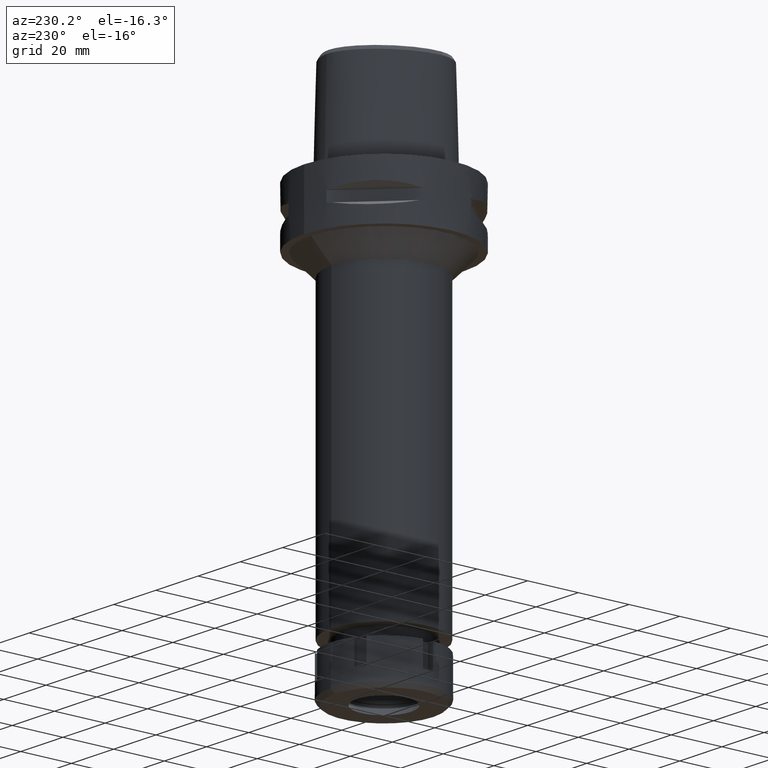
[diagram: clean part render]
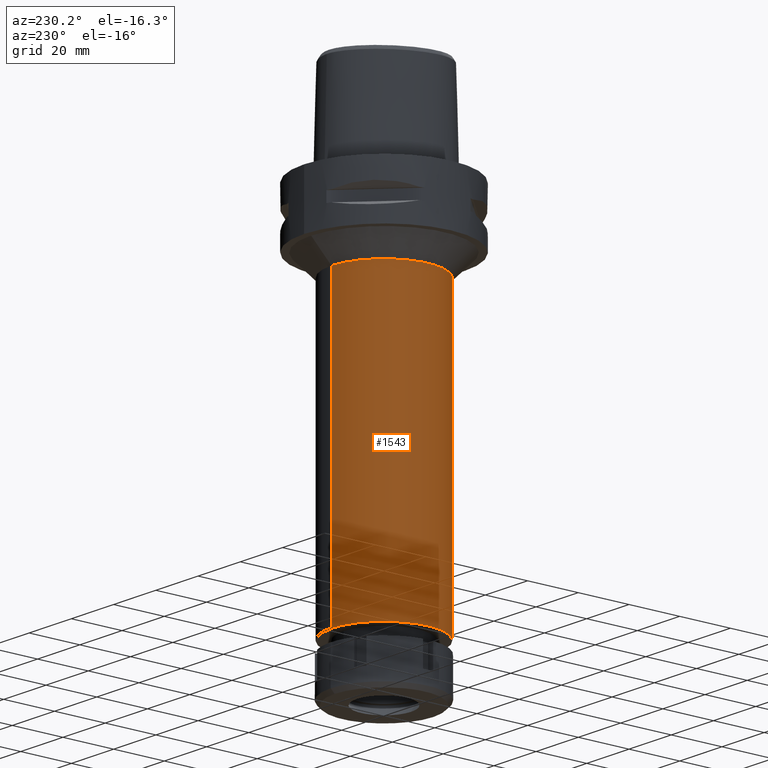
[diagram: same view with one face highlighted and labeled with its STEP entity id]
A machine part, auxiliary view. The second image highlights one B-rep face of the part: STEP entity #1543.
In plain terms, the highlighted cylindrical surface (partial cylindrical patch) has radius 20.75 mm, axis along (0, 0, -1).
Its self-contained STEP definition (entity closure, byte-faithful):
#124 = DIRECTION ( 'NONE',  ( 0.0000000000000000000, 0.0000000000000000000, -1.000000000000000000 ) ) ;
#853 = VECTOR ( 'NONE', #5563, 1000.000000000000000 ) ;
#879 = EDGE_CURVE ( 'NONE', #4517, #3945, #2536, .T. ) ;
#1379 = CARTESIAN_POINT ( 'NONE',  ( 0.0000000000000000000, 20.75000000000000000, -30.00000000000000000 ) ) ;
#1509 = CARTESIAN_POINT ( 'NONE',  ( 0.0000000000000000000, -20.75000000000000000, -30.00000000000000000 ) ) ;
#1543 = ADVANCED_FACE ( 'NONE', ( #4798 ), #2622, .T. ) ;
#1637 = VERTEX_POINT ( 'NONE', #4268 ) ;
#1668 = ORIENTED_EDGE ( 'NONE', *, *, #1809, .T. ) ;
#1685 = DIRECTION ( 'NONE',  ( 0.0000000000000000000, 0.0000000000000000000, 1.000000000000000000 ) ) ;
#1687 = DIRECTION ( 'NONE',  ( 0.0000000000000000000, 0.0000000000000000000, -1.000000000000000000 ) ) ;
#1809 = EDGE_CURVE ( 'NONE', #1637, #4517, #3194, .T. ) ;
#2104 = CARTESIAN_POINT ( 'NONE',  ( 0.0000000000000000000, 1.320781572880000066E-14, -144.5000000000000000 ) ) ;
#2153 = CARTESIAN_POINT ( 'NONE',  ( 0.0000000000000000000, 20.75000000000000000, -144.5000000000000000 ) ) ;
#2271 = VERTEX_POINT ( 'NONE', #3179 ) ;
#2301 = ORIENTED_EDGE ( 'NONE', *, *, #2528, .F. ) ;
#2528 = EDGE_CURVE ( 'NONE', #1637, #2271, #5379, .T. ) ;
#2536 = LINE ( 'NONE', #3003, #5241 ) ;
#2622 = CYLINDRICAL_SURFACE ( 'NONE', #5334, 20.75000000000000000 ) ;
#2641 = ORIENTED_EDGE ( 'NONE', *, *, #2762, .T. ) ;
#2762 = EDGE_CURVE ( 'NONE', #3945, #2271, #2935, .T. ) ;
#2935 = CIRCLE ( 'NONE', #4643, 20.75000000000000000 ) ;
#3003 = CARTESIAN_POINT ( 'NONE',  ( 0.0000000000000000000, 20.75000000000000000, -30.00000000000000000 ) ) ;
#3179 = CARTESIAN_POINT ( 'NONE',  ( 0.0000000000000000000, -20.75000000000000000, -144.5000000000000000 ) ) ;
#3194 = CIRCLE ( 'NONE', #4449, 20.75000000000000000 ) ;
#3427 = DIRECTION ( 'NONE',  ( 0.0000000000000000000, 1.000000000000000000, 0.0000000000000000000 ) ) ;
#3823 = EDGE_LOOP ( 'NONE', ( #2641, #2301, #1668, #5208 ) ) ;
#3945 = VERTEX_POINT ( 'NONE', #2153 ) ;
#3953 = DIRECTION ( 'NONE',  ( 0.0000000000000000000, 0.0000000000000000000, -1.000000000000000000 ) ) ;
#4005 = CARTESIAN_POINT ( 'NONE',  ( 0.0000000000000000000, 0.0000000000000000000, -30.00000000000000000 ) ) ;
#4268 = CARTESIAN_POINT ( 'NONE',  ( 0.0000000000000000000, -20.75000000000000000, -30.00000000000000000 ) ) ;
#4449 = AXIS2_PLACEMENT_3D ( 'NONE', #4005, #124, #4513 ) ;
#4513 = DIRECTION ( 'NONE',  ( 0.0000000000000000000, -1.000000000000000000, 0.0000000000000000000 ) ) ;
#4517 = VERTEX_POINT ( 'NONE', #1379 ) ;
#4643 = AXIS2_PLACEMENT_3D ( 'NONE', #2104, #1685, #3427 ) ;
#4749 = DIRECTION ( 'NONE',  ( 0.0000000000000000000, -1.000000000000000000, 0.0000000000000000000 ) ) ;
#4798 = FACE_OUTER_BOUND ( 'NONE', #3823, .T. ) ;
#5208 = ORIENTED_EDGE ( 'NONE', *, *, #879, .T. ) ;
#5241 = VECTOR ( 'NONE', #1687, 1000.000000000000000 ) ;
#5334 = AXIS2_PLACEMENT_3D ( 'NONE', #5543, #3953, #4749 ) ;
#5379 = LINE ( 'NONE', #1509, #853 ) ;
#5543 = CARTESIAN_POINT ( 'NONE',  ( 0.0000000000000000000, 1.320781572880000066E-14, 7.849999999999999645 ) ) ;
#5563 = DIRECTION ( 'NONE',  ( 0.0000000000000000000, 0.0000000000000000000, -1.000000000000000000 ) ) ;